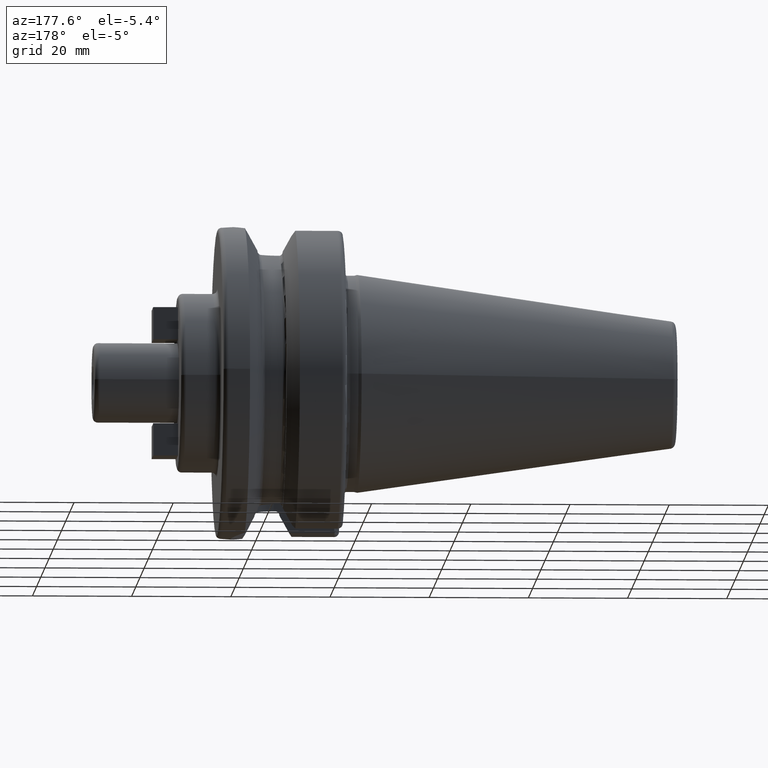
[diagram: clean part render]
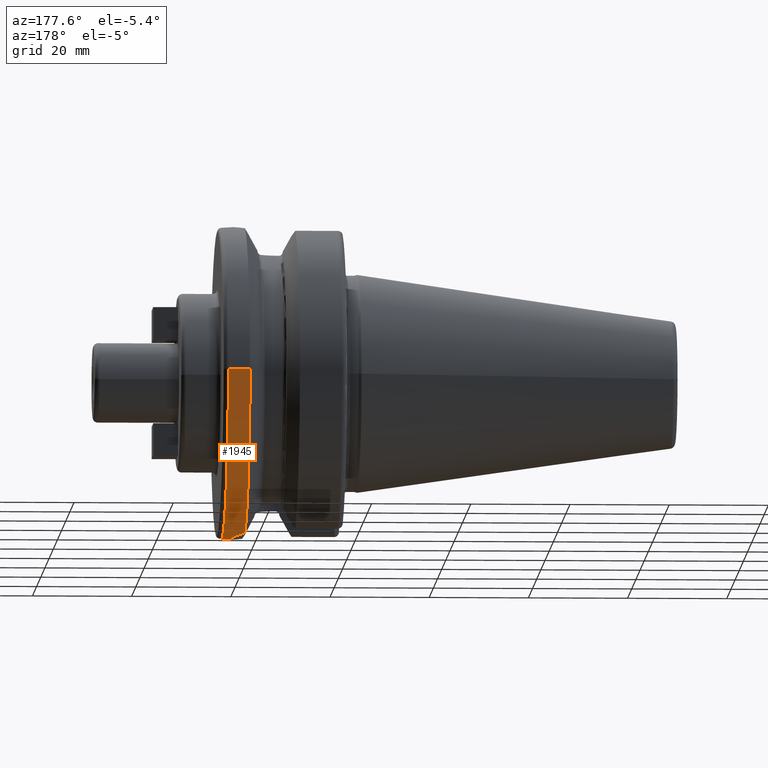
[diagram: same view with one face highlighted and labeled with its STEP entity id]
A machine part, auxiliary view. The second image highlights one B-rep face of the part: STEP entity #1945.
In plain terms, the highlighted cylindrical surface (partial cylindrical patch) has radius 31.4875 mm, axis along (1, 0, 0).
Its self-contained STEP definition (entity closure, byte-faithful):
#246=CARTESIAN_POINT('',(2.162727746897E1,0.E0,0.E0));
#247=DIRECTION('',(1.E0,0.E0,0.E0));
#248=DIRECTION('',(0.E0,-1.E0,0.E0));
#249=AXIS2_PLACEMENT_3D('',#246,#247,#248);
#251=DIRECTION('',(-1.E0,0.E0,0.E0));
#252=VECTOR('',#251,4.372722531031E0);
#253=CARTESIAN_POINT('',(2.6E1,-3.14875E1,0.E0));
#254=LINE('',#253,#252);
#255=CARTESIAN_POINT('',(2.6E1,0.E0,0.E0));
#256=DIRECTION('',(-1.E0,0.E0,0.E0));
#257=DIRECTION('',(0.E0,1.E0,0.E0));
#258=AXIS2_PLACEMENT_3D('',#255,#256,#257);
#260=DIRECTION('',(-1.E0,0.E0,0.E0));
#261=VECTOR('',#260,4.372722531031E0);
#262=CARTESIAN_POINT('',(2.6E1,3.14875E1,0.E0));
#263=LINE('',#262,#261);
#264=CARTESIAN_POINT('',(2.162727746897E1,0.E0,0.E0));
#265=DIRECTION('',(1.E0,0.E0,0.E0));
#266=DIRECTION('',(0.E0,2.025221356988E-1,-9.792776851088E-1));
#267=AXIS2_PLACEMENT_3D('',#264,#265,#266);
#269=CARTESIAN_POINT('',(2.162727746897E1,-6.376922817779E0,-3.083500464774E1));
#270=CARTESIAN_POINT('',(2.179639421098E1,-6.206831610819E0,-3.087018371088E1));
#271=CARTESIAN_POINT('',(2.232364867117E1,-5.632321227298E0,-3.098422972396E1));
#272=CARTESIAN_POINT('',(2.308132499159E1,-4.553413356838E0,-3.116719517710E1));
#273=CARTESIAN_POINT('',(2.375642364916E1,-3.096696697708E0,-3.134706212903E1));
#274=CARTESIAN_POINT('',(2.416388565718E1,-1.551520318298E0,-3.146240625515E1));
#275=CARTESIAN_POINT('',(2.429615986887E1,3.673173569156E-2,-3.150094402831E1));
#276=CARTESIAN_POINT('',(2.415103100304E1,1.624802494737E0,-3.145868929477E1));
#277=CARTESIAN_POINT('',(2.373074835246E1,3.167093598881E0,-3.133996423654E1));
#278=CARTESIAN_POINT('',(2.304347310477E1,4.618481554386E0,-3.115752883213E1));
#279=CARTESIAN_POINT('',(2.229119413287E1,5.670903386055E0,-3.097688944820E1));
#280=CARTESIAN_POINT('',(2.177863162319E1,6.224695230405E0,-3.086648974378E1));
#281=CARTESIAN_POINT('',(2.162727746897E1,6.376915747817E0,-3.083500610986E1));
#1360=CARTESIAN_POINT('',(2.162727746897E1,3.14875E1,0.E0));
#1362=VERTEX_POINT('',#1360);
#1364=CARTESIAN_POINT('',(2.162727746897E1,-3.14875E1,0.E0));
#1365=CARTESIAN_POINT('',(2.162727746897E1,-6.376922817779E0,
-3.083500464774E1));
#1366=VERTEX_POINT('',#1364);
#1367=VERTEX_POINT('',#1365);
#1368=CARTESIAN_POINT('',(2.6E1,3.14875E1,0.E0));
#1369=VERTEX_POINT('',#1368);
#1370=CARTESIAN_POINT('',(2.6E1,-3.14875E1,0.E0));
#1371=VERTEX_POINT('',#1370);
#1374=CARTESIAN_POINT('',(2.162727746897E1,6.376915747817E0,-3.083500610986E1));
#1375=VERTEX_POINT('',#1374);
#1926=CARTESIAN_POINT('',(-7.002E1,0.E0,0.E0));
#1927=DIRECTION('',(1.E0,0.E0,0.E0));
#1928=DIRECTION('',(0.E0,-1.E0,0.E0));
#1929=AXIS2_PLACEMENT_3D('',#1926,#1927,#1928);
#1930=CYLINDRICAL_SURFACE('',#1929,3.14875E1);
#1932=ORIENTED_EDGE('',*,*,#1931,.F.);
#1934=ORIENTED_EDGE('',*,*,#1933,.F.);
#1936=ORIENTED_EDGE('',*,*,#1935,.F.);
#1938=ORIENTED_EDGE('',*,*,#1937,.T.);
#1940=ORIENTED_EDGE('',*,*,#1939,.F.);
#1942=ORIENTED_EDGE('',*,*,#1941,.F.);
#1943=EDGE_LOOP('',(#1932,#1934,#1936,#1938,#1940,#1942));
#1944=FACE_OUTER_BOUND('',#1943,.F.);
#1945=ADVANCED_FACE('',(#1944),#1930,.T.);
#250=CIRCLE('',#249,3.14875E1);
#259=CIRCLE('',#258,3.14875E1);
#268=CIRCLE('',#267,3.14875E1);
#282=B_SPLINE_CURVE_WITH_KNOTS('',3,(#269,#270,#271,#272,#273,#274,#275,#276,
#277,#278,#279,#280,#281),.UNSPECIFIED.,.F.,.F.,(4,1,1,1,1,1,1,1,1,1,4),(0.E0,
5.022508536415E-2,1.633285299657E-1,2.764319745673E-1,3.895354191688E-1,
5.026388637704E-1,6.157423083720E-1,7.288457529735E-1,8.419491975751E-1,
9.550526421767E-1,1.E0),.UNSPECIFIED.);
#1931=EDGE_CURVE('',#1366,#1367,#250,.T.);
#1933=EDGE_CURVE('',#1371,#1366,#254,.T.);
#1935=EDGE_CURVE('',#1369,#1371,#259,.T.);
#1937=EDGE_CURVE('',#1369,#1362,#263,.T.);
#1939=EDGE_CURVE('',#1375,#1362,#268,.T.);
#1941=EDGE_CURVE('',#1367,#1375,#282,.T.);